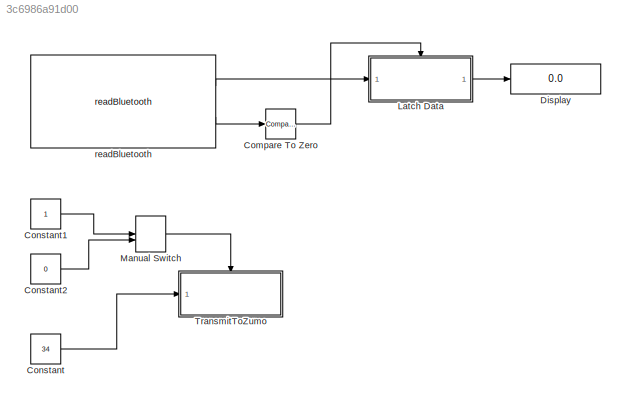
MODEL slx_3c6986a91d00
KIND model
CONFIG InitFcn = zumo = comms.Bt(RobotID.ZUMO_ADAFRUIT_32B0);\nzumo.init();
BLOCK [Reference] Compare To Zero  REF=simulink/Logic and Bit
Operations/Compare
To Zero
  OutDataTypeStr = boolean
  Ports = [1, 1]
  SourceBlock = simulink/Logic and Bit\nOperations/Compare\nTo Zero
  SourceType = Compare To Zero
  ZeroCross = on
  relop = >
BLOCK [Constant] Constant
  OutDataTypeStr = uint8
  Value = 34
BLOCK [Constant] Constant1
  SampleTime = -1
BLOCK [Constant] Constant2
  SampleTime = -1
  Value = 0
BLOCK [Display] Display
  Decimation = 1
  Ports = [1]
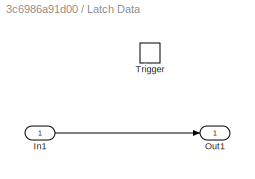
BLOCK [SubSystem] Latch Data
  Ports = [1, 1, 0, 1]
  RequestExecContextInheritance = off
  TreatAsAtomicUnit = on
BLOCK [Inport] Latch Data/In1
  IconDisplay = Port number
BLOCK [Outport] Latch Data/Out1
  IconDisplay = Port number
BLOCK [TriggerPort] Latch Data/Trigger
  Ports = []
  StatesWhenEnabling = held
BLOCK [ManualSwitch] Manual Switch
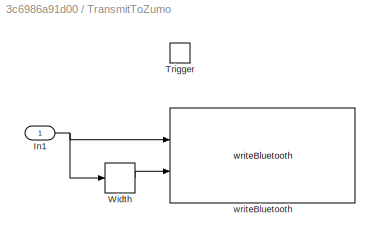
BLOCK [SubSystem] TransmitToZumo
  Ports = [1, 0, 0, 1]
  RequestExecContextInheritance = off
  TreatAsAtomicUnit = on
BLOCK [Inport] TransmitToZumo/In1
  IconDisplay = Port number
BLOCK [TriggerPort] TransmitToZumo/Trigger
  Ports = []
  StatesWhenEnabling = held
  TriggerType = either
BLOCK [Width] TransmitToZumo/Width
BLOCK [Reference] TransmitToZumo/writeBluetooth  REF=hostCommsLib/writeBluetooth
  Ports = [2]
  SourceBlock = hostCommsLib/writeBluetooth
  robotId = RobotID.ZUMO_ADAFRUIT_32B0
BLOCK [Reference] readBluetooth  REF=hostCommsLib/readBluetooth
  Ports = [0, 2]
  SourceBlock = hostCommsLib/readBluetooth
  numBytes = 1
  robotId = RobotID.ZUMO_ADAFRUIT_32B0
LINE Compare To Zero:1 -> Latch Data:trigger
LINE Constant1:1 -> Manual Switch:1
LINE Constant2:1 -> Manual Switch:2
LINE Constant:1 -> TransmitToZumo:1
LINE Latch Data/In1:1 -> Latch Data/Out1:1
LINE Latch Data:1 -> Display:1
LINE Manual Switch:1 -> TransmitToZumo:trigger
NET TransmitToZumo/In1:1 -> TransmitToZumo/Width:1, TransmitToZumo/writeBluetooth:1
LINE TransmitToZumo/Width:1 -> TransmitToZumo/writeBluetooth:2
LINE readBluetooth:1 -> Latch Data:1
LINE readBluetooth:2 -> Compare To Zero:1
note: NET lines group one-source signal fan-out (src -> all destinations, sorted); 1:1 wires keep LINE
